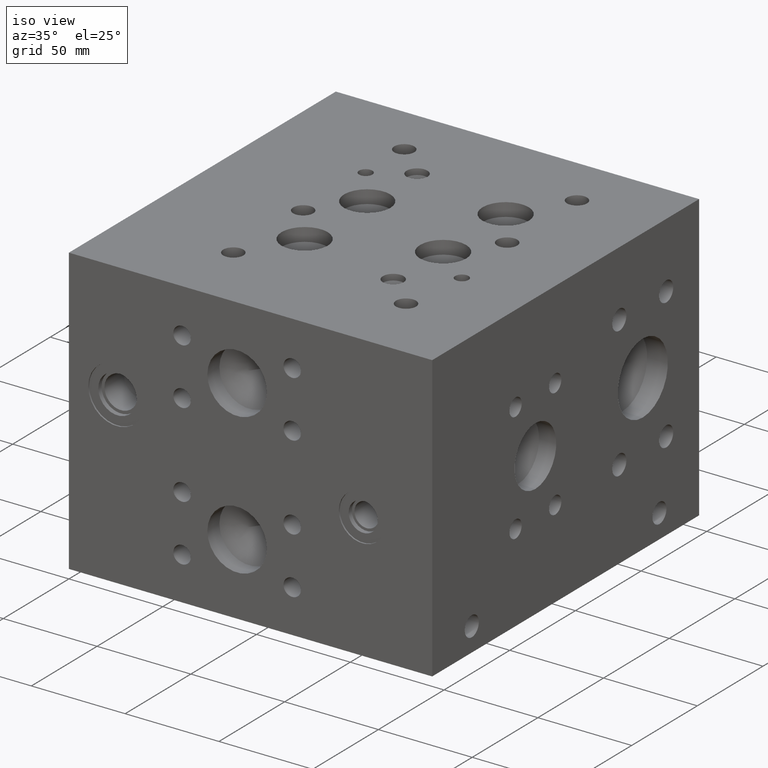
[diagram: clean part render]
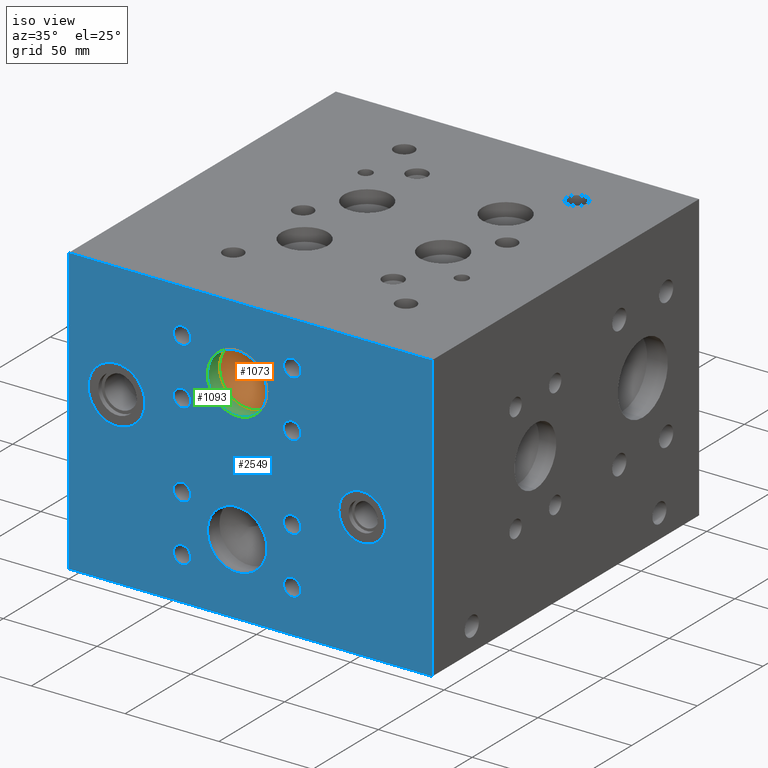
[diagram: same view with three faces highlighted in distinct colors, each labeled with its STEP entity id]
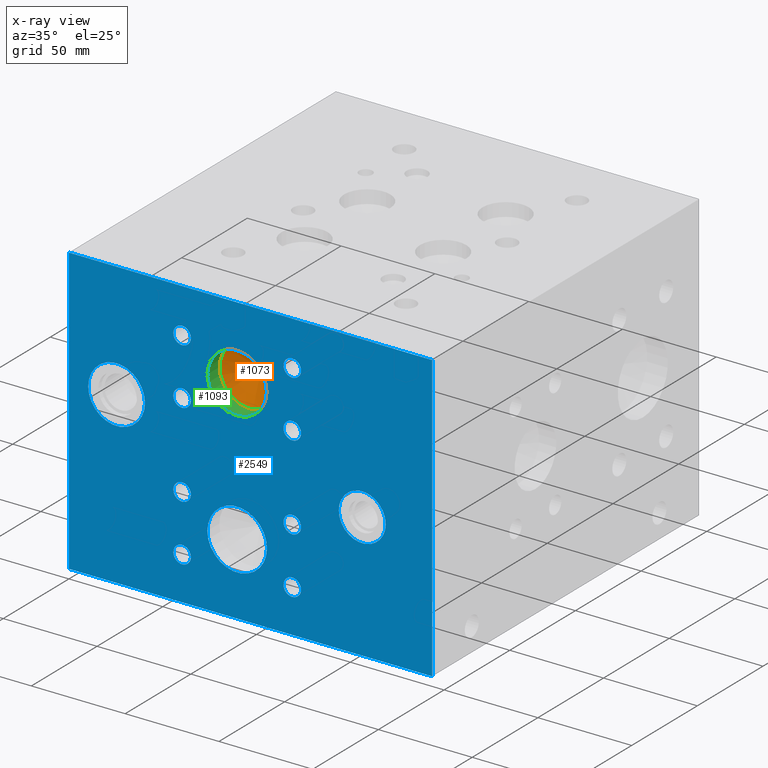
[diagram: x-ray of the same camera — body ghosted, the three highlighted faces saturated]
A machine part, iso view with three faces highlighted in distinct colors.
The next image is the same camera in x-ray (body ghosted, the three faces saturated) — at least one of them is partly hidden behind the body in this view.
Their STEP definitions:

[orange] entity #1073 — the highlighted conical surface has half-angle 60 deg.
#1057=CARTESIAN_POINT('',(89.687399999999997,13.748153250000000,113.512600000000020));
#1058=DIRECTION('',(0.0,-1.0,0.0));
#1059=DIRECTION('',(1.0,0.0,0.0));
#1060=AXIS2_PLACEMENT_3D('',#1057,#1058,#1059);
#1061=CONICAL_SURFACE('',#1060,7.937499999999993,60.000000063301364);
#1062=CARTESIAN_POINT('',(105.562400000000010,9.165435499999999,113.512600000000020));
#1063=VERTEX_POINT('',#1062);
#1064=CARTESIAN_POINT('',(89.687399999999997,9.165435499999999,113.512600000000020));
#1065=DIRECTION('',(0.0,-1.0,0.0));
#1066=DIRECTION('',(1.0,0.0,0.0));
#1067=AXIS2_PLACEMENT_3D('',#1064,#1065,#1066);
#1068=CIRCLE('',#1067,15.875000000000004);
#1069=EDGE_CURVE('',#1063,#1063,#1068,.T.);
#1070=ORIENTED_EDGE('',*,*,#1069,.T.);
#1071=EDGE_LOOP('',(#1070));
#1072=FACE_OUTER_BOUND('',#1071,.T.);
#1073=ADVANCED_FACE('',(#1072),#1061,.F.);

[blue] entity #2549 — the highlighted planar face has unit normal (0, -1, 0).
#404=CARTESIAN_POINT('',(40.525700000000001,0.0,90.754199999999997));
#405=VERTEX_POINT('',#404);
#406=CARTESIAN_POINT('',(25.399999999999999,0.0,90.754199999999997));
#407=DIRECTION('',(0.0,1.0,0.0));
#408=DIRECTION('',(1.0,0.0,0.0));
#409=AXIS2_PLACEMENT_3D('',#406,#407,#408);
#410=CIRCLE('',#409,15.125700000000002);
#411=EDGE_CURVE('',#405,#405,#410,.T.);
#709=CARTESIAN_POINT('',(168.871900000000010,0.0,66.675000000000011));
#710=VERTEX_POINT('',#709);
#711=CARTESIAN_POINT('',(156.362400000000010,0.0,66.675000000000011));
#712=DIRECTION('',(0.0,1.0,0.0));
#713=DIRECTION('',(1.0,0.0,0.0));
#714=AXIS2_PLACEMENT_3D('',#711,#712,#713);
#715=CIRCLE('',#714,12.509499999999996);
#716=EDGE_CURVE('',#710,#710,#715,.T.);
#746=CARTESIAN_POINT('',(64.998600000000010,0.0,53.187600000000010));
#747=VERTEX_POINT('',#746);
#748=CARTESIAN_POINT('',(60.325000000000003,0.0,53.187600000000010));
#749=DIRECTION('',(0.0,1.0,0.0));
#750=DIRECTION('',(1.0,0.0,0.0));
#751=AXIS2_PLACEMENT_3D('',#748,#749,#750);
#752=CIRCLE('',#751,4.673600000000002);
#753=EDGE_CURVE('',#747,#747,#752,.T.);
#783=CARTESIAN_POINT('',(64.998600000000010,0.0,23.012400000000000));
#784=VERTEX_POINT('',#783);
#785=CARTESIAN_POINT('',(60.325000000000003,0.0,23.012400000000000));
#786=DIRECTION('',(0.0,1.0,0.0));
#787=DIRECTION('',(1.0,0.0,0.0));
#788=AXIS2_PLACEMENT_3D('',#785,#786,#787);
#789=CIRCLE('',#788,4.673600000000002);
#790=EDGE_CURVE('',#784,#784,#789,.T.);
#820=CARTESIAN_POINT('',(123.723400000000010,0.0,23.012400000000000));
#821=VERTEX_POINT('',#820);
#822=CARTESIAN_POINT('',(119.049800000000020,0.0,23.012400000000000));
#823=DIRECTION('',(0.0,1.0,0.0));
#824=DIRECTION('',(1.0,0.0,0.0));
#825=AXIS2_PLACEMENT_3D('',#822,#823,#824);
#826=CIRCLE('',#825,4.673599999999993);
#827=EDGE_CURVE('',#821,#821,#826,.T.);
#857=CARTESIAN_POINT('',(123.723400000000010,0.0,53.187600000000010));
#858=VERTEX_POINT('',#857);
#859=CARTESIAN_POINT('',(119.049800000000020,0.0,53.187600000000010));
#860=DIRECTION('',(0.0,1.0,0.0));
#861=DIRECTION('',(1.0,0.0,0.0));
#862=AXIS2_PLACEMENT_3D('',#859,#860,#861);
#863=CIRCLE('',#862,4.673599999999993);
#864=EDGE_CURVE('',#858,#858,#863,.T.);
#894=CARTESIAN_POINT('',(105.562400000000010,0.0,38.100000000000009));
#895=VERTEX_POINT('',#894);
#896=CARTESIAN_POINT('',(89.687399999999997,0.0,38.100000000000009));
#897=DIRECTION('',(0.0,1.0,0.0));
#898=DIRECTION('',(1.0,0.0,0.0));
#899=AXIS2_PLACEMENT_3D('',#896,#897,#898);
#900=CIRCLE('',#899,15.875000000000004);
#901=EDGE_CURVE('',#895,#895,#900,.T.);
#931=CARTESIAN_POINT('',(64.998600000000010,0.0,128.600200000000000));
#932=VERTEX_POINT('',#931);
#933=CARTESIAN_POINT('',(60.325000000000003,0.0,128.600200000000000));
#934=DIRECTION('',(0.0,1.0,0.0));
#935=DIRECTION('',(1.0,0.0,0.0));
#936=AXIS2_PLACEMENT_3D('',#933,#934,#935);
#937=CIRCLE('',#936,4.673600000000002);
#938=EDGE_CURVE('',#932,#932,#937,.T.);
#968=CARTESIAN_POINT('',(64.993520000000004,0.0,98.430080000000004));
#969=VERTEX_POINT('',#968);
#970=CARTESIAN_POINT('',(60.319920000000010,0.0,98.430080000000004));
#971=DIRECTION('',(0.0,1.0,0.0));
#972=DIRECTION('',(1.0,0.0,0.0));
#973=AXIS2_PLACEMENT_3D('',#970,#971,#972);
#974=CIRCLE('',#973,4.673600000000002);
#975=EDGE_CURVE('',#969,#969,#974,.T.);
#1005=CARTESIAN_POINT('',(123.723400000000010,0.0,98.430080000000004));
#1006=VERTEX_POINT('',#1005);
#1007=CARTESIAN_POINT('',(119.049800000000020,0.0,98.430080000000004));
#1008=DIRECTION('',(0.0,1.0,0.0));
#1009=DIRECTION('',(1.0,0.0,0.0));
#1010=AXIS2_PLACEMENT_3D('',#1007,#1008,#1009);
#1011=CIRCLE('',#1010,4.673599999999993);
#1012=EDGE_CURVE('',#1006,#1006,#1011,.T.);
#1042=CARTESIAN_POINT('',(123.728479999999990,0.0,128.600200000000000));
#1043=VERTEX_POINT('',#1042);
#1044=CARTESIAN_POINT('',(119.054880000000000,0.0,128.600200000000000));
#1045=DIRECTION('',(0.0,1.0,0.0));
#1046=DIRECTION('',(1.0,0.0,0.0));
#1047=AXIS2_PLACEMENT_3D('',#1044,#1045,#1046);
#1048=CIRCLE('',#1047,4.673599999999993);
#1049=EDGE_CURVE('',#1043,#1043,#1048,.T.);
#1079=CARTESIAN_POINT('',(105.562400000000010,0.0,113.512600000000020));
#1080=VERTEX_POINT('',#1079);
#1081=CARTESIAN_POINT('',(89.687399999999997,0.0,113.512600000000020));
#1082=DIRECTION('',(0.0,1.0,0.0));
#1083=DIRECTION('',(1.0,0.0,0.0));
#1084=AXIS2_PLACEMENT_3D('',#1081,#1082,#1083);
#1085=CIRCLE('',#1084,15.875000000000004);
#1086=EDGE_CURVE('',#1080,#1080,#1085,.T.);
#2320=CARTESIAN_POINT('',(0.0,0.0,152.400000000000030));
#2321=VERTEX_POINT('',#2320);
#2338=CARTESIAN_POINT('',(0.0,0.0,0.0));
#2339=VERTEX_POINT('',#2338);
#2346=CARTESIAN_POINT('',(0.0,0.0,0.0));
#2347=DIRECTION('',(0.0,0.0,1.0));
#2348=VECTOR('',#2347,152.400000000000030);
#2349=LINE('',#2346,#2348);
#2350=EDGE_CURVE('',#2339,#2321,#2349,.T.);
#2430=CARTESIAN_POINT('',(193.675000000000040,0.0,152.400000000000030));
#2431=VERTEX_POINT('',#2430);
#2438=CARTESIAN_POINT('',(193.675000000000040,0.0,0.0));
#2439=VERTEX_POINT('',#2438);
#2440=CARTESIAN_POINT('',(193.675000000000040,0.0,0.0));
#2441=DIRECTION('',(0.0,0.0,1.0));
#2442=VECTOR('',#2441,152.400000000000030);
#2443=LINE('',#2440,#2442);
#2444=EDGE_CURVE('',#2439,#2431,#2443,.T.);
#2492=CARTESIAN_POINT('',(193.675000000000040,0.0,0.0));
#2493=DIRECTION('',(0.0,-1.0,0.0));
#2494=DIRECTION('',(0.0,0.0,-1.0));
#2495=AXIS2_PLACEMENT_3D('',#2492,#2493,#2494);
#2496=PLANE('',#2495);
#2497=CARTESIAN_POINT('',(193.675000000000040,0.0,152.400000000000030));
#2498=DIRECTION('',(-1.0,0.0,0.0));
#2499=VECTOR('',#2498,193.675000000000040);
#2500=LINE('',#2497,#2499);
#2501=EDGE_CURVE('',#2431,#2321,#2500,.T.);
#2502=ORIENTED_EDGE('',*,*,#2501,.T.);
#2503=ORIENTED_EDGE('',*,*,#2350,.F.);
#2504=CARTESIAN_POINT('',(0.0,0.0,0.0));
#2505=DIRECTION('',(1.0,0.0,0.0));
#2506=VECTOR('',#2505,193.675000000000040);
#2507=LINE('',#2504,#2506);
#2508=EDGE_CURVE('',#2339,#2439,#2507,.T.);
#2509=ORIENTED_EDGE('',*,*,#2508,.T.);
#2510=ORIENTED_EDGE('',*,*,#2444,.T.);
#2511=EDGE_LOOP('',(#2502,#2503,#2509,#2510));
#2512=FACE_OUTER_BOUND('',#2511,.T.);
#2513=ORIENTED_EDGE('',*,*,#411,.T.);
#2514=EDGE_LOOP('',(#2513));
#2515=FACE_BOUND('',#2514,.T.);
#2516=ORIENTED_EDGE('',*,*,#716,.T.);
#2517=EDGE_LOOP('',(#2516));
#2518=FACE_BOUND('',#2517,.T.);
#2519=ORIENTED_EDGE('',*,*,#753,.T.);
#2520=EDGE_LOOP('',(#2519));
#2521=FACE_BOUND('',#2520,.T.);
#2522=ORIENTED_EDGE('',*,*,#790,.T.);
#2523=EDGE_LOOP('',(#2522));
#2524=FACE_BOUND('',#2523,.T.);
#2525=ORIENTED_EDGE('',*,*,#827,.T.);
#2526=EDGE_LOOP('',(#2525));
#2527=FACE_BOUND('',#2526,.T.);
#2528=ORIENTED_EDGE('',*,*,#864,.T.);
#2529=EDGE_LOOP('',(#2528));
#2530=FACE_BOUND('',#2529,.T.);
#2531=ORIENTED_EDGE('',*,*,#901,.T.);
#2532=EDGE_LOOP('',(#2531));
#2533=FACE_BOUND('',#2532,.T.);
#2534=ORIENTED_EDGE('',*,*,#938,.T.);
#2535=EDGE_LOOP('',(#2534));
#2536=FACE_BOUND('',#2535,.T.);
#2537=ORIENTED_EDGE('',*,*,#975,.T.);
#2538=EDGE_LOOP('',(#2537));
#2539=FACE_BOUND('',#2538,.T.);
#2540=ORIENTED_EDGE('',*,*,#1012,.T.);
#2541=EDGE_LOOP('',(#2540));
#2542=FACE_BOUND('',#2541,.T.);
#2543=ORIENTED_EDGE('',*,*,#1049,.T.);
#2544=EDGE_LOOP('',(#2543));
#2545=FACE_BOUND('',#2544,.T.);
#2546=ORIENTED_EDGE('',*,*,#1086,.T.);
#2547=EDGE_LOOP('',(#2546));
#2548=FACE_BOUND('',#2547,.T.);
#2549=ADVANCED_FACE('',(#2512,#2515,#2518,#2521,#2524,#2527,#2530,#2533,#2536,#2539,#2542,#2545,#2548),#2496,.T.);

[green] entity #1093 — the highlighted cylindrical surface (bore or boss wall) has radius 15.875 mm, axis along (0, -1, 0).
#1062=CARTESIAN_POINT('',(105.562400000000010,9.165435499999999,113.512600000000020));
#1063=VERTEX_POINT('',#1062);
#1064=CARTESIAN_POINT('',(89.687399999999997,9.165435499999999,113.512600000000020));
#1065=DIRECTION('',(0.0,-1.0,0.0));
#1066=DIRECTION('',(1.0,0.0,0.0));
#1067=AXIS2_PLACEMENT_3D('',#1064,#1065,#1066);
#1068=CIRCLE('',#1067,15.875000000000004);
#1069=EDGE_CURVE('',#1063,#1063,#1068,.T.);
#1074=CARTESIAN_POINT('',(89.687399999999997,4.582717750000000,113.512600000000020));
#1075=DIRECTION('',(0.0,-1.0,0.0));
#1076=DIRECTION('',(1.0,0.0,0.0));
#1077=AXIS2_PLACEMENT_3D('',#1074,#1075,#1076);
#1078=CYLINDRICAL_SURFACE('',#1077,15.875000000000004);
#1079=CARTESIAN_POINT('',(105.562400000000010,0.0,113.512600000000020));
#1080=VERTEX_POINT('',#1079);
#1081=CARTESIAN_POINT('',(89.687399999999997,0.0,113.512600000000020));
#1082=DIRECTION('',(0.0,1.0,0.0));
#1083=DIRECTION('',(1.0,0.0,0.0));
#1084=AXIS2_PLACEMENT_3D('',#1081,#1082,#1083);
#1085=CIRCLE('',#1084,15.875000000000004);
#1086=EDGE_CURVE('',#1080,#1080,#1085,.T.);
#1087=ORIENTED_EDGE('',*,*,#1086,.F.);
#1088=EDGE_LOOP('',(#1087));
#1089=FACE_OUTER_BOUND('',#1088,.T.);
#1090=ORIENTED_EDGE('',*,*,#1069,.F.);
#1091=EDGE_LOOP('',(#1090));
#1092=FACE_BOUND('',#1091,.T.);
#1093=ADVANCED_FACE('',(#1089,#1092),#1078,.F.);